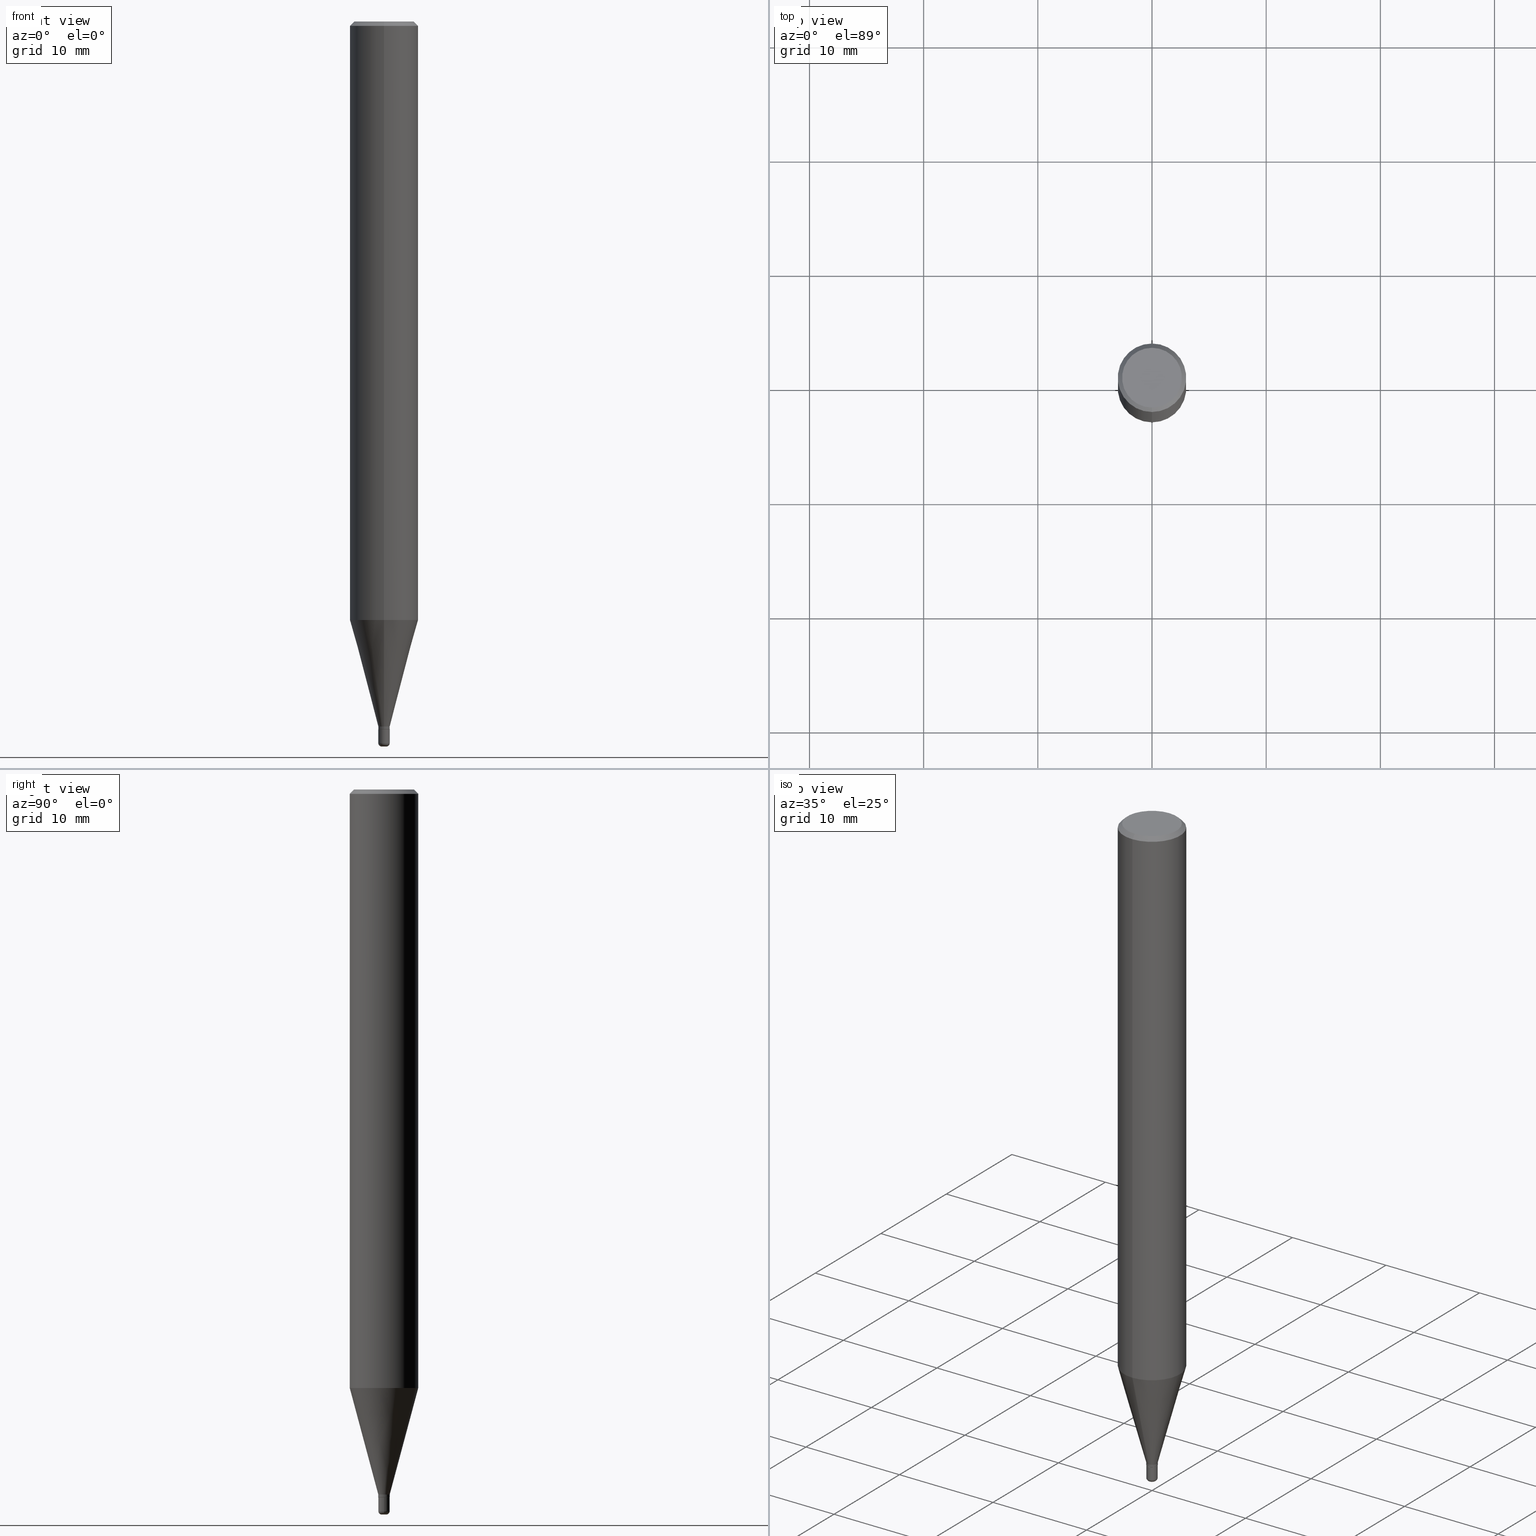
[diagram: canonical four-view strip — front | top / right | iso, engineering-drawing reading convention]
A machine part, canonical four-view strip (front | top / right | iso — engineering-drawing reading convention). The complete STEP part file that produces these views, byte-faithful:
ISO-10303-21;
HEADER;
FILE_DESCRIPTION (( 'STEP AP203' ),
    '1' );
FILE_NAME ('05323.STEP',
    '2024-02-29T19:36:20',
    ( '' ),
    ( '' ),
    'SwSTEP 2.0',
    'SolidWorks 2023',
    '' );
FILE_SCHEMA (( 'CONFIG_CONTROL_DESIGN' ));
ENDSEC;

DATA;
#1 = DIRECTION ( 'NONE',  ( 1.000000000000000000, -6.982962677686265922E-15, 4.876176775795935793E-29 ) ) ;
#2 = DIRECTION ( 'NONE',  ( -2.445641850549916020E-29, 3.491233529463707792E-15, 1.000000000000000000 ) ) ;
#3 = VERTEX_POINT ( 'NONE', #99 ) ;
#4 = CIRCLE ( 'NONE', #151, 0.01969999999999998141 ) ;
#5 = LINE ( 'NONE', #88, #325 ) ;
#6 = DIRECTION ( 'NONE',  ( 1.000000000000000000, -6.982962677686306154E-15, 0.000000000000000000 ) ) ;
#7 = DIRECTION ( 'NONE',  ( -2.445641850549916020E-29, 3.491233529463707792E-15, 1.000000000000000000 ) ) ;
#8 = CIRCLE ( 'NONE', #510, 0.01919999999999997750 ) ;
#9 = CARTESIAN_POINT ( 'NONE',  ( 0.000000000000000000, 0.000000000000000000, 0.000000000000000000 ) ) ;
#10 = DIRECTION ( 'NONE',  ( -2.445468806185136597E-29, 3.491481338843145583E-15, 1.000000000000000000 ) ) ;
#11 = CARTESIAN_POINT ( 'NONE',  ( -1.375643647504193623E-16, -0.01969999999999998835, 6.877730053043500146E-17 ) ) ;
#12 = DIRECTION ( 'NONE',  ( 6.982962677686265922E-15, 1.000000000000000000, -3.487819265831411744E-15 ) ) ;
#13 = CC_DESIGN_PERSON_AND_ORGANIZATION_ASSIGNMENT ( #244, #74, ( #111 ) ) ;
#14 = PLANE ( 'NONE',  #425 ) ;
#15 = CARTESIAN_POINT ( 'NONE',  ( 6.248406319806904300E-49, -8.919803872557076158E-35, -2.554914702004267745E-20 ) ) ;
#16 = CIRCLE ( 'NONE', #258, 0.01969999999999999182 ) ;
#17 = ORIENTED_EDGE ( 'NONE', *, *, #312, .T. ) ;
#18 = ORIENTED_EDGE ( 'NONE', *, *, #312, .F. ) ;
#19 = ADVANCED_FACE ( 'NONE', ( #429 ), #66, .F. ) ;
#20 = DIRECTION ( 'NONE',  ( 1.000000000000000000, -6.982962677686306154E-15, 4.883557194083126914E-29 ) ) ;
#21 = ORIENTED_EDGE ( 'NONE', *, *, #414, .F. ) ;
#22 =( NAMED_UNIT ( * ) PLANE_ANGLE_UNIT ( ) SI_UNIT ( $, .RADIAN. ) );
#23 = ORIENTED_EDGE ( 'NONE', *, *, #464, .T. ) ;
#24 = AXIS2_PLACEMENT_3D ( 'NONE', #148, #296, #260 ) ;
#25 = VERTEX_POINT ( 'NONE', #104 ) ;
#26 = ORIENTED_EDGE ( 'NONE', *, *, #191, .T. ) ;
#27 = ADVANCED_BREP_SHAPE_REPRESENTATION ( '05323', ( #131, #495, #122 ), #320 ) ;
#28 = ADVANCED_FACE ( 'NONE', ( #172 ), #136, .F. ) ;
#29 = PERSON_AND_ORGANIZATION ( #347, #300 ) ;
#30 = AXIS2_PLACEMENT_3D ( 'NONE', #285, #438, #47 ) ;
#31 = PERSON_AND_ORGANIZATION ( #347, #300 ) ;
#32 = DATE_AND_TIME ( #361, #377 ) ;
#33 = APPROVAL ( #238, 'UNSPECIFIED' ) ;
#34 = EDGE_CURVE ( 'NONE', #515, #209, #385, .T. ) ;
#35 = ORIENTED_EDGE ( 'NONE', *, *, #279, .F. ) ;
#36 = EDGE_LOOP ( 'NONE', ( #199, #113 ) ) ;
#37 = DIRECTION ( 'NONE',  ( -2.445641850549916020E-29, 3.491233529463707792E-15, 1.000000000000000000 ) ) ;
#38 = DIRECTION ( 'NONE',  ( -6.982962677686265922E-15, -1.000000000000000000, 3.491233529463707792E-15 ) ) ;
#39 = CARTESIAN_POINT ( 'NONE',  ( 1.399769189447991143E-16, 0.01969999999999150903, -2.430899999999999839 ) ) ;
#40 = VERTEX_POINT ( 'NONE', #184 ) ;
#41 = TOROIDAL_SURFACE ( 'NONE', #197, 0.007899999999999997302, 0.01180000000000033973 ) ;
#42 = DIRECTION ( 'NONE',  ( -2.445641850549916020E-29, 3.491233529463707792E-15, 1.000000000000000000 ) ) ;
#43 = ORIENTED_EDGE ( 'NONE', *, *, #341, .F. ) ;
#44 = CARTESIAN_POINT ( 'NONE',  ( 5.969567193007289904E-29, -8.521751922067965462E-15, -2.440900000000000070 ) ) ;
#45 = EDGE_CURVE ( 'NONE', #302, #25, #50, .T. ) ;
#46 = DIRECTION ( 'NONE',  ( 5.024295867788576727E-15, 0.7071067811866224018, 0.7071067811864726327 ) ) ;
#47 = DIRECTION ( 'NONE',  ( 1.000000000000000000, -6.982962677686369262E-15, 0.000000000000000000 ) ) ;
#48 = CARTESIAN_POINT ( 'NONE',  ( 1.364242052659987581E-16, 0.01919999999999145654, -2.440900000000000070 ) ) ;
#49 = CIRCLE ( 'NONE', #274, 0.007900000000000000772 ) ;
#50 = LINE ( 'NONE', #11, #130 ) ;
#51 = CARTESIAN_POINT ( 'NONE',  ( -8.246878922347479668E-16, -0.1180999999999999966, 4.123146798296638619E-16 ) ) ;
#52 = DIRECTION ( 'NONE',  ( -2.445641850549916020E-29, 3.491233529463707792E-15, 1.000000000000000000 ) ) ;
#53 = CARTESIAN_POINT ( 'NONE',  ( 5.969144809017300159E-29, -8.522356799982234543E-15, -2.440900000000000070 ) ) ;
#54 = CC_DESIGN_PERSON_AND_ORGANIZATION_ASSIGNMENT ( #322, #475, ( #208 ) ) ;
#55 = CARTESIAN_POINT ( 'NONE',  ( 8.391509709326781971E-16, 0.1180999999999999966, -4.123146798296638619E-16 ) ) ;
#56 = AXIS2_PLACEMENT_3D ( 'NONE', #95, #272, #276 ) ;
#57 = AXIS2_PLACEMENT_3D ( 'NONE', #211, #375, #183 ) ;
#58 = ORIENTED_EDGE ( 'NONE', *, *, #128, .T. ) ;
#59 = CARTESIAN_POINT ( 'NONE',  ( 8.246878922347483612E-16, 0.1180999999999999411, -0.01500000000000036894 ) ) ;
#60 = APPLICATION_CONTEXT ( 'configuration controlled 3d designs of mechanical parts and assemblies' ) ;
#61 = ORIENTED_EDGE ( 'NONE', *, *, #73, .F. ) ;
#62 = FACE_OUTER_BOUND ( 'NONE', #125, .T. ) ;
#63 = EDGE_LOOP ( 'NONE', ( #391, #26, #403, #281 ) ) ;
#64 = ORIENTED_EDGE ( 'NONE', *, *, #443, .T. ) ;
#65 = ORIENTED_EDGE ( 'NONE', *, *, #229, .F. ) ;
#66 = PLANE ( 'NONE',  #331 ) ;
#67 = EDGE_CURVE ( 'NONE', #230, #307, #352, .T. ) ;
#68 = VERTEX_POINT ( 'NONE', #261 ) ;
#69 = COORDINATED_UNIVERSAL_TIME_OFFSET ( 5, 0, .BEHIND. ) ;
#70 = AXIS2_PLACEMENT_3D ( 'NONE', #224, #338, #383 ) ;
#71 = ORIENTED_EDGE ( 'NONE', *, *, #372, .T. ) ;
#72 = AXIS2_PLACEMENT_3D ( 'NONE', #168, #290, #1 ) ;
#73 = EDGE_CURVE ( 'NONE', #350, #324, #398, .T. ) ;
#74 = PERSON_AND_ORGANIZATION_ROLE ( 'creator' ) ;
#75 = ORIENTED_EDGE ( 'NONE', *, *, #414, .T. ) ;
#76 = EDGE_LOOP ( 'NONE', ( #402, #75, #17, #387 ) ) ;
#77 = CARTESIAN_POINT ( 'NONE',  ( 3.668462775824863590E-31, -5.236850294195546971E-17, -0.01499999999999995781 ) ) ;
#78 = FACE_OUTER_BOUND ( 'NONE', #205, .T. ) ;
#79 = DIRECTION ( 'NONE',  ( -6.982962677686265133E-15, -1.000000000000000000, 0.000000000000000000 ) ) ;
#80 = FACE_OUTER_BOUND ( 'NONE', #313, .T. ) ;
#81 = CLOSED_SHELL ( 'NONE', ( #469, #504, #91, #284, #85, #268, #381, #452, #114, #19, #326, #139 ) ) ;
#82 = CIRCLE ( 'NONE', #466, 0.1180999999999999966 ) ;
#83 = FACE_OUTER_BOUND ( 'NONE', #76, .T. ) ;
#84 = LOCAL_TIME ( 14, 36, 20.00000000000000000, #430 ) ;
#85 = ADVANCED_FACE ( 'NONE', ( #62 ), #446, .T. ) ;
#86 = DIRECTION ( 'NONE',  ( -6.982962677686265922E-15, -1.000000000000000000, 0.000000000000000000 ) ) ;
#87 = ORIENTED_EDGE ( 'NONE', *, *, #341, .T. ) ;
#88 = CARTESIAN_POINT ( 'NONE',  ( 1.399769189447396292E-16, 0.01969999999999998835, -6.877730053043500146E-17 ) ) ;
#89 = DIRECTION ( 'NONE',  ( 1.000000000000000000, -6.982962677686306154E-15, 4.883557194083126914E-29 ) ) ;
#90 = CARTESIAN_POINT ( 'NONE',  ( 5.046988425594275791E-29, -7.204740632929544117E-15, -2.063666200535222650 ) ) ;
#91 = ADVANCED_FACE ( 'NONE', ( #227 ), #297, .T. ) ;
#92 = LINE ( 'NONE', #59, #100 ) ;
#93 = AXIS2_PLACEMENT_3D ( 'NONE', #77, #37, #121 ) ;
#94 = ORIENTED_EDGE ( 'NONE', *, *, #514, .F. ) ;
#95 = CARTESIAN_POINT ( 'NONE',  ( 6.199188644380781470E-29, -8.606238667193129794E-15, -2.500000000000000000 ) ) ;
#96 = DIRECTION ( 'NONE',  ( 4.937700262164553564E-15, 0.7071067811865459074, -0.7071067811865491270 ) ) ;
#97 = CIRCLE ( 'NONE', #70, 0.1031000000000000111 ) ;
#98 = LINE ( 'NONE', #463, #333 ) ;
#99 = CARTESIAN_POINT ( 'NONE',  ( -0.007900000000000000772, -8.610048709673797919E-15, -2.500000000000000444 ) ) ;
#100 = VECTOR ( 'NONE', #96, 39.37007874015748143 ) ;
#101 = ORIENTED_EDGE ( 'NONE', *, *, #170, .F. ) ;
#102 = EDGE_CURVE ( 'NONE', #117, #40, #97, .T. ) ;
#103 =( LENGTH_UNIT ( ) NAMED_UNIT ( * ) SI_UNIT ( $, .METRE. ) );
#104 = CARTESIAN_POINT ( 'NONE',  ( -1.375643647503599512E-16, -0.01970000000000847809, -2.430899999999999839 ) ) ;
#105 = ORIENTED_EDGE ( 'NONE', *, *, #372, .F. ) ;
#106 = EDGE_CURVE ( 'NONE', #515, #143, #411, .T. ) ;
#107 = COORDINATED_UNIVERSAL_TIME_OFFSET ( 5, 0, .BEHIND. ) ;
#108 = APPROVAL ( #354, 'UNSPECIFIED' ) ;
#109 = ORIENTED_EDGE ( 'NONE', *, *, #191, .F. ) ;
#110 = CIRCLE ( 'NONE', #30, 0.007900000000000000772 ) ;
#111 = PRODUCT_DEFINITION_FORMATION_WITH_SPECIFIED_SOURCE ( 'ANY', '', #208, .NOT_KNOWN. ) ;
#112 = COORDINATED_UNIVERSAL_TIME_OFFSET ( 5, 0, .BEHIND. ) ;
#113 = ORIENTED_EDGE ( 'NONE', *, *, #235, .F. ) ;
#114 = ADVANCED_FACE ( 'NONE', ( #182 ), #14, .F. ) ;
#115 = VERTEX_POINT ( 'NONE', #378 ) ;
#116 = PERSON_AND_ORGANIZATION_ROLE ( 'creator' ) ;
#117 = VERTEX_POINT ( 'NONE', #462 ) ;
#118 = DATE_TIME_ROLE ( 'creation_date' ) ;
#119 = ORIENTED_EDGE ( 'NONE', *, *, #247, .F. ) ;
#120 = AXIS2_PLACEMENT_3D ( 'NONE', #386, #390, #384 ) ;
#121 = DIRECTION ( 'NONE',  ( -6.982962677686265922E-15, -1.000000000000000000, 3.487819265831411744E-15 ) ) ;
#122 = AXIS2_PLACEMENT_3D ( 'NONE', #465, #393, #203 ) ;
#123 = CARTESIAN_POINT ( 'NONE',  ( 1.382005621053990101E-16, 0.01919999999999145654, -2.440900000000000070 ) ) ;
#124 = EDGE_LOOP ( 'NONE', ( #249, #395 ) ) ;
#125 = EDGE_LOOP ( 'NONE', ( #196, #360, #440, #295 ) ) ;
#126 = LINE ( 'NONE', #39, #418 ) ;
#127 = EDGE_LOOP ( 'NONE', ( #305, #21 ) ) ;
#128 = EDGE_CURVE ( 'NONE', #480, #307, #433, .T. ) ;
#129 = LINE ( 'NONE', #252, #232 ) ;
#130 = VECTOR ( 'NONE', #189, 39.37007874015748143 ) ;
#131 = MANIFOLD_SOLID_BREP ( 'Body-Move/Copy2[1]', #316 ) ;
#132 = ORIENTED_EDGE ( 'NONE', *, *, #472, .T. ) ;
#133 = DIRECTION ( 'NONE',  ( -2.445641850549916020E-29, 3.491233529463707792E-15, 1.000000000000000000 ) ) ;
#134 = AXIS2_PLACEMENT_3D ( 'NONE', #304, #422, #12 ) ;
#135 = DIRECTION ( 'NONE',  ( -2.445641850549916020E-29, 3.491233529463707792E-15, 1.000000000000000000 ) ) ;
#136 = PLANE ( 'NONE',  #237 ) ;
#137 = DIRECTION ( 'NONE',  ( -2.445641850549916020E-29, 3.491233529463707792E-15, 1.000000000000000000 ) ) ;
#138 = DIRECTION ( 'NONE',  ( -2.445641850549916020E-29, 3.491233529463707792E-15, 1.000000000000000000 ) ) ;
#139 = ADVANCED_FACE ( 'NONE', ( #336 ), #263, .T. ) ;
#140 = CARTESIAN_POINT ( 'NONE',  ( -8.246878922347475723E-16, -0.1181000000000000522, -0.01499999999999954495 ) ) ;
#141 = CARTESIAN_POINT ( 'NONE',  ( -0.007899999999999997302, -8.631370991184467837E-15, -2.488199999999999967 ) ) ;
#142 = DIRECTION ( 'NONE',  ( 1.000000000000000000, -6.982962677686344808E-15, 0.000000000000000000 ) ) ;
#143 = VERTEX_POINT ( 'NONE', #140 ) ;
#144 = PLANE ( 'NONE',  #56 ) ;
#145 =( NAMED_UNIT ( * ) SI_UNIT ( $, .STERADIAN. ) SOLID_ANGLE_UNIT ( ) );
#146 = CIRCLE ( 'NONE', #427, 0.01919999999999997750 ) ;
#147 = ORIENTED_EDGE ( 'NONE', *, *, #45, .T. ) ;
#148 = CARTESIAN_POINT ( 'NONE',  ( 5.969567193007289904E-29, -8.521751922067965462E-15, -2.440900000000000070 ) ) ;
#149 = ORIENTED_EDGE ( 'NONE', *, *, #34, .T. ) ;
#150 = CARTESIAN_POINT ( 'NONE',  ( -8.246878922346975783E-16, -0.1181000000000072270, -2.063666200535221762 ) ) ;
#151 = AXIS2_PLACEMENT_3D ( 'NONE', #485, #404, #79 ) ;
#152 = DIRECTION ( 'NONE',  ( -2.445468806185136877E-29, 3.491481338843145188E-15, 1.000000000000000000 ) ) ;
#153 = DIRECTION ( 'NONE',  ( -6.982962677686265922E-15, -1.000000000000000000, 3.491233529463707398E-15 ) ) ;
#154 = CONICAL_SURFACE ( 'NONE', #134, 0.1180999999999999966, 0.7853981633974495002 ) ;
#155 = EDGE_LOOP ( 'NONE', ( #43, #474, #231, #246 ) ) ;
#156 = ADVANCED_FACE ( 'NONE', ( #498 ), #144, .F. ) ;
#157 = COORDINATED_UNIVERSAL_TIME_OFFSET ( 5, 0, .BEHIND. ) ;
#158 = VECTOR ( 'NONE', #177, 39.37007874015748143 ) ;
#159 = SHAPE_DEFINITION_REPRESENTATION ( #162, #27 ) ;
#160 = AXIS2_PLACEMENT_3D ( 'NONE', #176, #335, #374 ) ;
#161 = CC_DESIGN_APPROVAL ( #108, ( #111 ) ) ;
#162 = PRODUCT_DEFINITION_SHAPE ( 'NONE', 'NONE',  #482 ) ;
#163 = SECURITY_CLASSIFICATION_LEVEL ( 'unclassified' ) ;
#164 = PERSON_AND_ORGANIZATION ( #347, #300 ) ;
#165 = AXIS2_PLACEMENT_3D ( 'NONE', #53, #226, #478 ) ;
#166 = AXIS2_PLACEMENT_3D ( 'NONE', #349, #266, #506 ) ;
#167 = CC_DESIGN_APPROVAL ( #33, ( #334 ) ) ;
#168 = CARTESIAN_POINT ( 'NONE',  ( 0.000000000000000000, 0.000000000000000000, 0.000000000000000000 ) ) ;
#169 = ORIENTED_EDGE ( 'NONE', *, *, #198, .T. ) ;
#170 = EDGE_CURVE ( 'NONE', #115, #209, #126, .T. ) ;
#171 = CYLINDRICAL_SURFACE ( 'NONE', #491, 0.1180999999999999966 ) ;
#172 = FACE_OUTER_BOUND ( 'NONE', #124, .T. ) ;
#173 = DIRECTION ( 'NONE',  ( 2.445641850549916020E-29, -3.491233529463707792E-15, -1.000000000000000000 ) ) ;
#174 = CARTESIAN_POINT ( 'NONE',  ( -1.340728834115164757E-16, -0.01920000000000850193, -2.440900000000000070 ) ) ;
#175 = VECTOR ( 'NONE', #406, 39.37007874015748143 ) ;
#176 = CARTESIAN_POINT ( 'NONE',  ( 5.945110774501791456E-29, -8.486839586773326720E-15, -2.430899999999999839 ) ) ;
#177 = DIRECTION ( 'NONE',  ( -2.445641850549916300E-29, 3.491233529463707398E-15, 1.000000000000000000 ) ) ;
#178 = LOCAL_TIME ( 14, 36, 20.00000000000000000, #69 ) ;
#179 = CC_DESIGN_DATE_AND_TIME_ASSIGNMENT ( #399, #401, ( #334 ) ) ;
#180 = CARTESIAN_POINT ( 'NONE',  ( 6.084815483549856310E-29, -8.687503867309514303E-15, -2.488199999999999967 ) ) ;
#181 = EDGE_CURVE ( 'NONE', #190, #302, #202, .T. ) ;
#182 = FACE_OUTER_BOUND ( 'NONE', #200, .T. ) ;
#183 = DIRECTION ( 'NONE',  ( -6.982962677686266711E-15, -1.000000000000000000, 0.000000000000000000 ) ) ;
#184 = CARTESIAN_POINT ( 'NONE',  ( 7.723156721521011834E-16, 0.1031000000000000111, -3.599717260347282847E-16 ) ) ;
#185 = DIRECTION ( 'NONE',  ( -2.445468806185136597E-29, 3.491481338843145583E-15, 1.000000000000000000 ) ) ;
#186 = ORIENTED_EDGE ( 'NONE', *, *, #106, .F. ) ;
#187 = CARTESIAN_POINT ( 'NONE',  ( 7.199434520694541042E-16, 0.1031000000000000111, -3.599589514612182737E-16 ) ) ;
#188 = CARTESIAN_POINT ( 'NONE',  ( 6.084815483549856310E-29, -8.687503867309514303E-15, -2.488199999999999967 ) ) ;
#189 = DIRECTION ( 'NONE',  ( -2.445641850549916300E-29, 3.491233529463707398E-15, 1.000000000000000000 ) ) ;
#190 = VERTEX_POINT ( 'NONE', #329 ) ;
#191 = EDGE_CURVE ( 'NONE', #117, #143, #215, .T. ) ;
#192 = EDGE_LOOP ( 'NONE', ( #109, #315, #23, #451 ) ) ;
#193 = ORIENTED_EDGE ( 'NONE', *, *, #198, .F. ) ;
#194 = DIRECTION ( 'NONE',  ( -2.445468806185136597E-29, 3.491481338843145583E-15, 1.000000000000000000 ) ) ;
#195 = ORIENTED_EDGE ( 'NONE', *, *, #102, .T. ) ;
#196 = ORIENTED_EDGE ( 'NONE', *, *, #256, .T. ) ;
#197 = AXIS2_PLACEMENT_3D ( 'NONE', #188, #346, #20 ) ;
#198 = EDGE_CURVE ( 'NONE', #302, #190, #4, .T. ) ;
#199 = ORIENTED_EDGE ( 'NONE', *, *, #476, .F. ) ;
#200 = EDGE_LOOP ( 'NONE', ( #132, #195 ) ) ;
#201 = APPROVAL_DATE_TIME ( #314, #394 ) ;
#202 = CIRCLE ( 'NONE', #264, 0.01969999999999998141 ) ;
#203 = DIRECTION ( 'NONE',  ( 1.000000000000000000, 0.000000000000000000, 0.000000000000000000 ) ) ;
#204 = VECTOR ( 'NONE', #220, 39.37007874015748143 ) ;
#205 = EDGE_LOOP ( 'NONE', ( #426, #319, #207, #417 ) ) ;
#206 = APPROVAL_DATE_TIME ( #32, #33 ) ;
#207 = ORIENTED_EDGE ( 'NONE', *, *, #106, .T. ) ;
#208 = PRODUCT ( '05323', '05323', '', ( #318 ) ) ;
#209 = VERTEX_POINT ( 'NONE', #369 ) ;
#210 = ORIENTED_EDGE ( 'NONE', *, *, #247, .T. ) ;
#211 = CARTESIAN_POINT ( 'NONE',  ( 5.969567193007289904E-29, -8.521751922067965462E-15, -2.440900000000000070 ) ) ;
#212 = AXIS2_PLACEMENT_3D ( 'NONE', #345, #342, #6 ) ;
#213 = CC_DESIGN_PERSON_AND_ORGANIZATION_ASSIGNMENT ( #473, #116, ( #482 ) ) ;
#214 = AXIS2_PLACEMENT_3D ( 'NONE', #407, #486, #447 ) ;
#215 = LINE ( 'NONE', #441, #175 ) ;
#216 = CC_DESIGN_SECURITY_CLASSIFICATION ( #334, ( #111 ) ) ;
#217 = CARTESIAN_POINT ( 'NONE',  ( -0.01969999999999999876, -8.464953414701133537E-15, -2.440900000000000070 ) ) ;
#218 = ORIENTED_EDGE ( 'NONE', *, *, #181, .T. ) ;
#219 = FACE_OUTER_BOUND ( 'NONE', #396, .T. ) ;
#220 = DIRECTION ( 'NONE',  ( -4.937700262165053702E-15, -0.7071067811866175168, 0.7071067811864775177 ) ) ;
#221 = VECTOR ( 'NONE', #370, 39.37007874015748143 ) ;
#222 = DIRECTION ( 'NONE',  ( -2.445641850549916300E-29, 3.491233529463707398E-15, 1.000000000000000000 ) ) ;
#223 = CARTESIAN_POINT ( 'NONE',  ( 3.668462775824863590E-31, -5.236850294195546971E-17, -0.01499999999999995781 ) ) ;
#224 = CARTESIAN_POINT ( 'NONE',  ( 6.248406319806904300E-49, -8.919803872557076158E-35, -2.554914702004267745E-20 ) ) ;
#225 = CARTESIAN_POINT ( 'NONE',  ( 6.084815483549856310E-29, -8.687503867309514303E-15, -2.488199999999999967 ) ) ;
#226 = DIRECTION ( 'NONE',  ( -2.445468806185136597E-29, 3.491481338843145583E-15, 1.000000000000000000 ) ) ;
#227 = FACE_OUTER_BOUND ( 'NONE', #63, .T. ) ;
#228 = CARTESIAN_POINT ( 'NONE',  ( -0.01970000000000033877, -8.464953414701131959E-15, -2.488199999999999967 ) ) ;
#229 = EDGE_CURVE ( 'NONE', #143, #513, #309, .T. ) ;
#230 = VERTEX_POINT ( 'NONE', #516 ) ;
#231 = ORIENTED_EDGE ( 'NONE', *, *, #67, .T. ) ;
#232 = VECTOR ( 'NONE', #373, 39.37007874015748854 ) ;
#233 = DIRECTION ( 'NONE',  ( 1.000000000000000000, -6.982962677686369262E-15, 0.000000000000000000 ) ) ;
#234 = PRODUCT_RELATED_PRODUCT_CATEGORY ( 'detail', '', ( #208 ) ) ;
#235 = EDGE_CURVE ( 'NONE', #3, #230, #110, .T. ) ;
#236 = ORIENTED_EDGE ( 'NONE', *, *, #362, .T. ) ;
#237 = AXIS2_PLACEMENT_3D ( 'NONE', #294, #456, #460 ) ;
#238 = APPROVAL_STATUS ( 'not_yet_approved' ) ;
#239 = APPROVAL_STATUS ( 'not_yet_approved' ) ;
#240 = CALENDAR_DATE ( 2024, 29, 2 ) ;
#241 = VECTOR ( 'NONE', #46, 39.37007874015748143 ) ;
#242 = EDGE_LOOP ( 'NONE', ( #119, #218, #147, #35 ) ) ;
#243 = APPROVAL_PERSON_ORGANIZATION ( #31, #33, #508 ) ;
#244 = PERSON_AND_ORGANIZATION ( #347, #300 ) ;
#245 = EDGE_LOOP ( 'NONE', ( #273, #87, #94, #291 ) ) ;
#246 = ORIENTED_EDGE ( 'NONE', *, *, #128, .F. ) ;
#247 = EDGE_CURVE ( 'NONE', #190, #115, #5, .T. ) ;
#248 = CYLINDRICAL_SURFACE ( 'NONE', #448, 0.1180999999999999966 ) ;
#249 = ORIENTED_EDGE ( 'NONE', *, *, #501, .T. ) ;
#250 = DIRECTION ( 'NONE',  ( -6.982962677686265133E-15, -1.000000000000000000, 0.000000000000000000 ) ) ;
#251 = CYLINDRICAL_SURFACE ( 'NONE', #214, 0.01970000000000016877 ) ;
#252 = CARTESIAN_POINT ( 'NONE',  ( -1.375643647503599512E-16, -0.01970000000000847809, -2.430899999999999839 ) ) ;
#253 = DIRECTION ( 'NONE',  ( -2.445641850549916020E-29, 3.491233529463707792E-15, 1.000000000000000000 ) ) ;
#254 = CARTESIAN_POINT ( 'NONE',  ( 5.945110774501791456E-29, -8.486839586773326720E-15, -2.430899999999999839 ) ) ;
#255 = DIRECTION ( 'NONE',  ( -2.445641850549916020E-29, 3.491233529463707792E-15, 1.000000000000000000 ) ) ;
#256 = EDGE_CURVE ( 'NONE', #25, #115, #400, .T. ) ;
#257 = DIRECTION ( 'NONE',  ( -6.982962677686265922E-15, -1.000000000000000000, 4.626330217890369336E-15 ) ) ;
#258 = AXIS2_PLACEMENT_3D ( 'NONE', #254, #2, #86 ) ;
#259 = APPLICATION_PROTOCOL_DEFINITION ( 'international standard', 'config_control_design', 1994, #421 ) ;
#260 = DIRECTION ( 'NONE',  ( -6.982962677686266711E-15, -1.000000000000000000, 0.000000000000000000 ) ) ;
#261 = CARTESIAN_POINT ( 'NONE',  ( -1.340728834115164757E-16, -0.01920000000000850193, -2.440900000000000070 ) ) ;
#262 = EDGE_CURVE ( 'NONE', #209, #515, #82, .T. ) ;
#263 = CYLINDRICAL_SURFACE ( 'NONE', #287, 0.01969999999999998835 ) ;
#264 = AXIS2_PLACEMENT_3D ( 'NONE', #483, #518, #250 ) ;
#265 = ORIENTED_EDGE ( 'NONE', *, *, #434, .F. ) ;
#266 = DIRECTION ( 'NONE',  ( -2.445641850549916020E-29, 3.491233529463707792E-15, 1.000000000000000000 ) ) ;
#267 = AXIS2_PLACEMENT_3D ( 'NONE', #141, #410, #339 ) ;
#268 = ADVANCED_FACE ( 'NONE', ( #389 ), #436, .T. ) ;
#269 =( CONVERSION_BASED_UNIT ( 'INCH', #351 ) LENGTH_UNIT ( ) NAMED_UNIT ( #507 ) );
#270 = PERSON_AND_ORGANIZATION_ROLE ( 'classification_officer' ) ;
#271 = AXIS2_PLACEMENT_3D ( 'NONE', #223, #173, #488 ) ;
#272 = DIRECTION ( 'NONE',  ( -2.438088387897960049E-29, 3.491481338843145188E-15, 1.000000000000000000 ) ) ;
#273 = ORIENTED_EDGE ( 'NONE', *, *, #476, .T. ) ;
#274 = AXIS2_PLACEMENT_3D ( 'NONE', #420, #185, #233 ) ;
#275 = LOCAL_TIME ( 14, 36, 20.00000000000000000, #107 ) ;
#276 = DIRECTION ( 'NONE',  ( 1.000000000000000000, -6.982962677686265922E-15, 4.876176775795935793E-29 ) ) ;
#277 = DATE_AND_TIME ( #397, #275 ) ;
#278 = DIRECTION ( 'NONE',  ( -2.445641850549916020E-29, 3.491233529463707398E-15, 1.000000000000000000 ) ) ;
#279 = EDGE_CURVE ( 'NONE', #115, #25, #16, .T. ) ;
#280 = PERSON_AND_ORGANIZATION_ROLE ( 'design_supplier' ) ;
#281 = ORIENTED_EDGE ( 'NONE', *, *, #464, .F. ) ;
#282 = APPROVAL_ROLE ( '' ) ;
#283 = AXIS2_PLACEMENT_3D ( 'NONE', #15, #52, #459 ) ;
#284 = ADVANCED_FACE ( 'NONE', ( #455 ), #171, .T. ) ;
#285 = CARTESIAN_POINT ( 'NONE',  ( 6.113672015462842613E-29, -8.728703347107866520E-15, -2.500000000000000444 ) ) ;
#286 = DIRECTION ( 'NONE',  ( -2.445641850549916020E-29, 3.491233529463707792E-15, 1.000000000000000000 ) ) ;
#287 = AXIS2_PLACEMENT_3D ( 'NONE', #9, #133, #289 ) ;
#288 = CARTESIAN_POINT ( 'NONE',  ( 5.945110774501791456E-29, -8.486839586773326720E-15, -2.430899999999999839 ) ) ;
#289 = DIRECTION ( 'NONE',  ( -6.982962677686265922E-15, -1.000000000000000000, 3.491233529463707792E-15 ) ) ;
#290 = DIRECTION ( 'NONE',  ( -2.445468806185136597E-29, 3.491481338843145583E-15, 1.000000000000000000 ) ) ;
#291 = ORIENTED_EDGE ( 'NONE', *, *, #67, .F. ) ;
#292 = DIRECTION ( 'NONE',  ( -6.982962677686265922E-15, -1.000000000000000000, 4.626330217890369336E-15 ) ) ;
#293 = CYLINDRICAL_SURFACE ( 'NONE', #72, 0.01970000000000016877 ) ;
#294 = CARTESIAN_POINT ( 'NONE',  ( 1.375643647504790939E-16, 0.01969999999999147433, -2.440900000000000070 ) ) ;
#295 = ORIENTED_EDGE ( 'NONE', *, *, #409, .F. ) ;
#296 = DIRECTION ( 'NONE',  ( -2.445641850549916020E-29, 3.491233529463707792E-15, 1.000000000000000000 ) ) ;
#297 = CONICAL_SURFACE ( 'NONE', #271, 0.1180999999999999966, 0.7853981633974495002 ) ;
#298 = TOROIDAL_SURFACE ( 'NONE', #490, 0.007899999999999997302, 0.01180000000000033973 ) ;
#299 = CC_DESIGN_DATE_AND_TIME_ASSIGNMENT ( #277, #118, ( #482 ) ) ;
#300 = ORGANIZATION ( 'UNSPECIFIED', 'UNSPECIFIED', '' ) ;
#301 = FACE_OUTER_BOUND ( 'NONE', #192, .T. ) ;
#302 = VERTEX_POINT ( 'NONE', #412 ) ;
#303 = DIRECTION ( 'NONE',  ( 2.445641850549916020E-29, -3.491233529463707398E-15, -1.000000000000000000 ) ) ;
#304 = CARTESIAN_POINT ( 'NONE',  ( 3.668462775824863590E-31, -5.236850294195546971E-17, -0.01499999999999995781 ) ) ;
#305 = ORIENTED_EDGE ( 'NONE', *, *, #362, .F. ) ;
#306 = DIRECTION ( 'NONE',  ( 1.000000000000000000, -6.982962677686306154E-15, 0.000000000000000000 ) ) ;
#307 = VERTEX_POINT ( 'NONE', #330 ) ;
#308 = CC_DESIGN_PERSON_AND_ORGANIZATION_ASSIGNMENT ( #431, #270, ( #334 ) ) ;
#309 = CIRCLE ( 'NONE', #93, 0.1180999999999999966 ) ;
#310 = CONICAL_SURFACE ( 'NONE', #57, 0.01919999999999997750, 0.7853981633975507526 ) ;
#311 = LINE ( 'NONE', #55, #500 ) ;
#312 = EDGE_CURVE ( 'NONE', #68, #302, #415, .T. ) ;
#313 = EDGE_LOOP ( 'NONE', ( #105, #58, #503, #61 ) ) ;
#314 = DATE_AND_TIME ( #479, #467 ) ;
#315 = ORIENTED_EDGE ( 'NONE', *, *, #472, .F. ) ;
#316 = CLOSED_SHELL ( 'NONE', ( #511, #419, #28, #424, #317, #156 ) ) ;
#317 = ADVANCED_FACE ( 'NONE', ( #517 ), #298, .T. ) ;
#318 = MECHANICAL_CONTEXT ( 'NONE', #421, 'mechanical' ) ;
#319 = ORIENTED_EDGE ( 'NONE', *, *, #262, .T. ) ;
#320 =( GEOMETRIC_REPRESENTATION_CONTEXT ( 3 ) GLOBAL_UNCERTAINTY_ASSIGNED_CONTEXT ( ( #471 ) ) GLOBAL_UNIT_ASSIGNED_CONTEXT ( ( #269, #22, #145 ) ) REPRESENTATION_CONTEXT ( 'NONE', 'WORKASPACE' ) );
#321 = APPROVAL_PERSON_ORGANIZATION ( #357, #108, #282 ) ;
#322 = PERSON_AND_ORGANIZATION ( #347, #300 ) ;
#323 = EDGE_CURVE ( 'NONE', #413, #190, #405, .T. ) ;
#324 = VERTEX_POINT ( 'NONE', #379 ) ;
#325 = VECTOR ( 'NONE', #222, 39.37007874015748143 ) ;
#326 = ADVANCED_FACE ( 'NONE', ( #83 ), #310, .T. ) ;
#327 = CARTESIAN_POINT ( 'NONE',  ( 3.668462775824863590E-31, -5.236850294195546971E-17, -0.01499999999999995781 ) ) ;
#328 = ORIENTED_EDGE ( 'NONE', *, *, #262, .F. ) ;
#329 = CARTESIAN_POINT ( 'NONE',  ( 1.399769189447987691E-16, 0.01969999999999139106, -2.440400000000000347 ) ) ;
#330 = CARTESIAN_POINT ( 'NONE',  ( 0.01970000000000033877, -8.825068232059938251E-15, -2.488199999999999967 ) ) ;
#331 = AXIS2_PLACEMENT_3D ( 'NONE', #355, #278, #153 ) ;
#332 = DIRECTION ( 'NONE',  ( -6.982962677686265922E-15, -1.000000000000000000, 0.000000000000000000 ) ) ;
#333 = VECTOR ( 'NONE', #152, 39.37007874015748143 ) ;
#334 = SECURITY_CLASSIFICATION ( '', '', #163 ) ;
#335 = DIRECTION ( 'NONE',  ( -2.445641850549916020E-29, 3.491233529463707792E-15, 1.000000000000000000 ) ) ;
#336 = FACE_OUTER_BOUND ( 'NONE', #242, .T. ) ;
#337 = LINE ( 'NONE', #439, #221 ) ;
#338 = DIRECTION ( 'NONE',  ( -2.445641850549916020E-29, 3.491233529463707792E-15, 1.000000000000000000 ) ) ;
#339 = DIRECTION ( 'NONE',  ( -1.000000000000000000, 7.105427357601039724E-15, 0.000000000000000000 ) ) ;
#340 = CARTESIAN_POINT ( 'NONE',  ( 0.007899999999999997302, -8.742669272463236971E-15, -2.488199999999999967 ) ) ;
#341 = EDGE_CURVE ( 'NONE', #3, #480, #367, .T. ) ;
#342 = DIRECTION ( 'NONE',  ( -2.445468806185136597E-29, 3.491481338843145583E-15, 1.000000000000000000 ) ) ;
#343 = CYLINDRICAL_SURFACE ( 'NONE', #166, 0.01969999999999998835 ) ;
#344 = CIRCLE ( 'NONE', #408, 0.01970000000000033877 ) ;
#345 = CARTESIAN_POINT ( 'NONE',  ( 6.084815483549856310E-29, -8.687503867309514303E-15, -2.488199999999999967 ) ) ;
#346 = DIRECTION ( 'NONE',  ( -2.445468806185136597E-29, 3.491481338843145583E-15, 1.000000000000000000 ) ) ;
#347 = PERSON ( 'UNSPECIFIED', 'UNSPECIFIED', 'UNSPECIFIED', ('UNSPECIFIED'), ('UNSPECIFIED'), ('UNSPECIFIED') ) ;
#348 = EDGE_LOOP ( 'NONE', ( #169, #210, #432, #449 ) ) ;
#349 = CARTESIAN_POINT ( 'NONE',  ( 0.000000000000000000, 0.000000000000000000, 0.000000000000000000 ) ) ;
#350 = VERTEX_POINT ( 'NONE', #217 ) ;
#351 = LENGTH_MEASURE_WITH_UNIT ( LENGTH_MEASURE( 0.02539999999999999897 ), #103 );
#352 = CIRCLE ( 'NONE', #358, 0.01180000000000034147 ) ;
#353 = CIRCLE ( 'NONE', #120, 0.01969999999999999876 ) ;
#354 = APPROVAL_STATUS ( 'not_yet_approved' ) ;
#355 = CARTESIAN_POINT ( 'NONE',  ( 5.969567193007289904E-29, -8.521751922067965462E-15, -2.440900000000000070 ) ) ;
#356 = CC_DESIGN_PERSON_AND_ORGANIZATION_ASSIGNMENT ( #29, #280, ( #111 ) ) ;
#357 = PERSON_AND_ORGANIZATION ( #347, #300 ) ;
#358 = AXIS2_PLACEMENT_3D ( 'NONE', #340, #497, #142 ) ;
#359 = APPLICATION_PROTOCOL_DEFINITION ( 'international standard', 'config_control_design', 1994, #60 ) ;
#360 = ORIENTED_EDGE ( 'NONE', *, *, #170, .T. ) ;
#361 = CALENDAR_DATE ( 2024, 29, 2 ) ;
#362 = EDGE_CURVE ( 'NONE', #68, #413, #8, .T. ) ;
#363 = APPROVAL_ROLE ( '' ) ;
#364 = DIRECTION ( 'NONE',  ( 1.839019923739594004E-15, 0.2588190451025240701, 0.9659258262890673130 ) ) ;
#365 = AXIS2_PLACEMENT_3D ( 'NONE', #416, #253, #454 ) ;
#366 = DIRECTION ( 'NONE',  ( -6.982962677686266711E-15, -1.000000000000000000, 0.000000000000000000 ) ) ;
#367 = CIRCLE ( 'NONE', #267, 0.01180000000000034147 ) ;
#368 = APPROVAL_PERSON_ORGANIZATION ( #164, #394, #363 ) ;
#369 = CARTESIAN_POINT ( 'NONE',  ( 8.391509709327284870E-16, 0.1180999999999927941, -2.063666200535223094 ) ) ;
#370 = DIRECTION ( 'NONE',  ( -2.445468806185136877E-29, 3.491481338843145188E-15, 1.000000000000000000 ) ) ;
#371 = ORIENTED_EDGE ( 'NONE', *, *, #279, .T. ) ;
#372 = EDGE_CURVE ( 'NONE', #480, #350, #337, .T. ) ;
#373 = DIRECTION ( 'NONE',  ( -1.807323732225323828E-15, -0.2588190451025172978, 0.9659258262890690894 ) ) ;
#374 = DIRECTION ( 'NONE',  ( -6.982962677686265922E-15, -1.000000000000000000, 0.000000000000000000 ) ) ;
#375 = DIRECTION ( 'NONE',  ( -2.445641850549916020E-29, 3.491233529463707792E-15, 1.000000000000000000 ) ) ;
#376 = AXIS2_PLACEMENT_3D ( 'NONE', #327, #286, #444 ) ;
#377 = LOCAL_TIME ( 14, 36, 20.00000000000000000, #157 ) ;
#378 = CARTESIAN_POINT ( 'NONE',  ( 4.895639449387641704E-16, 0.01969999999999150903, -2.430899999999999839 ) ) ;
#379 = CARTESIAN_POINT ( 'NONE',  ( 0.01969999999999999876, -8.659921164732653758E-15, -2.440900000000000070 ) ) ;
#380 = DIRECTION ( 'NONE',  ( -2.445641850549916020E-29, 3.491233529463707792E-15, 1.000000000000000000 ) ) ;
#381 = ADVANCED_FACE ( 'NONE', ( #78 ), #248, .T. ) ;
#382 = DIRECTION ( 'NONE',  ( -2.445641850549916300E-29, 3.491233529463707398E-15, 1.000000000000000000 ) ) ;
#383 = DIRECTION ( 'NONE',  ( -6.982962677686265922E-15, -1.000000000000000000, 3.491233529463707398E-15 ) ) ;
#384 = DIRECTION ( 'NONE',  ( 1.000000000000000000, -6.982962677686278543E-15, 0.000000000000000000 ) ) ;
#385 = CIRCLE ( 'NONE', #487, 0.1180999999999999966 ) ;
#386 = CARTESIAN_POINT ( 'NONE',  ( 5.969144809017300159E-29, -8.522356799982234543E-15, -2.440900000000000070 ) ) ;
#387 = ORIENTED_EDGE ( 'NONE', *, *, #181, .F. ) ;
#388 = FACE_OUTER_BOUND ( 'NONE', #494, .T. ) ;
#389 = FACE_OUTER_BOUND ( 'NONE', #437, .T. ) ;
#390 = DIRECTION ( 'NONE',  ( -2.445468806185136597E-29, 3.491481338843145583E-15, 1.000000000000000000 ) ) ;
#391 = ORIENTED_EDGE ( 'NONE', *, *, #102, .F. ) ;
#392 = AXIS2_PLACEMENT_3D ( 'NONE', #288, #7, #332 ) ;
#393 = DIRECTION ( 'NONE',  ( 0.000000000000000000, 0.000000000000000000, 1.000000000000000000 ) ) ;
#394 = APPROVAL ( #239, 'UNSPECIFIED' ) ;
#395 = ORIENTED_EDGE ( 'NONE', *, *, #73, .T. ) ;
#396 = EDGE_LOOP ( 'NONE', ( #461, #71, #477, #265 ) ) ;
#397 = CALENDAR_DATE ( 2024, 29, 2 ) ;
#398 = CIRCLE ( 'NONE', #165, 0.01969999999999999876 ) ;
#399 = DATE_AND_TIME ( #240, #178 ) ;
#400 = CIRCLE ( 'NONE', #160, 0.01969999999999999182 ) ;
#401 = DATE_TIME_ROLE ( 'classification_date' ) ;
#402 = ORIENTED_EDGE ( 'NONE', *, *, #323, .F. ) ;
#403 = ORIENTED_EDGE ( 'NONE', *, *, #229, .T. ) ;
#404 = DIRECTION ( 'NONE',  ( -2.445641850549916020E-29, 3.491233529463707792E-15, 1.000000000000000000 ) ) ;
#405 = LINE ( 'NONE', #48, #241 ) ;
#406 = DIRECTION ( 'NONE',  ( -4.851104656540969797E-15, -0.7071067811865507924, -0.7071067811865442421 ) ) ;
#407 = CARTESIAN_POINT ( 'NONE',  ( 0.000000000000000000, 0.000000000000000000, 0.000000000000000000 ) ) ;
#408 = AXIS2_PLACEMENT_3D ( 'NONE', #225, #194, #306 ) ;
#409 = EDGE_CURVE ( 'NONE', #25, #515, #129, .T. ) ;
#410 = DIRECTION ( 'NONE',  ( 7.105427357601001859E-15, 1.000000000000000000, -3.491481338843145583E-15 ) ) ;
#411 = LINE ( 'NONE', #51, #158 ) ;
#412 = CARTESIAN_POINT ( 'NONE',  ( -1.375643647503600991E-16, -0.01970000000000856830, -2.440400000000000347 ) ) ;
#413 = VERTEX_POINT ( 'NONE', #123 ) ;
#414 = EDGE_CURVE ( 'NONE', #413, #68, #146, .T. ) ;
#415 = LINE ( 'NONE', #174, #204 ) ;
#416 = CARTESIAN_POINT ( 'NONE',  ( 5.945110774501791456E-29, -8.486839586773326720E-15, -2.430899999999999839 ) ) ;
#417 = ORIENTED_EDGE ( 'NONE', *, *, #423, .F. ) ;
#418 = VECTOR ( 'NONE', #364, 39.37007874015748854 ) ;
#419 = ADVANCED_FACE ( 'NONE', ( #219 ), #293, .T. ) ;
#420 = CARTESIAN_POINT ( 'NONE',  ( 6.113672015462842613E-29, -8.728703347107866520E-15, -2.500000000000000444 ) ) ;
#421 = APPLICATION_CONTEXT ( 'configuration controlled 3d designs of mechanical parts and assemblies' ) ;
#422 = DIRECTION ( 'NONE',  ( 2.445641850549916020E-29, -3.491233529463707792E-15, -1.000000000000000000 ) ) ;
#423 = EDGE_CURVE ( 'NONE', #513, #143, #457, .T. ) ;
#424 = ADVANCED_FACE ( 'NONE', ( #80 ), #251, .T. ) ;
#425 = AXIS2_PLACEMENT_3D ( 'NONE', #187, #303, #458 ) ;
#426 = ORIENTED_EDGE ( 'NONE', *, *, #443, .F. ) ;
#427 = AXIS2_PLACEMENT_3D ( 'NONE', #44, #135, #366 ) ;
#428 = CC_DESIGN_APPROVAL ( #394, ( #482 ) ) ;
#429 = FACE_OUTER_BOUND ( 'NONE', #127, .T. ) ;
#430 = COORDINATED_UNIVERSAL_TIME_OFFSET ( 5, 0, .BEHIND. ) ;
#431 = PERSON_AND_ORGANIZATION ( #347, #300 ) ;
#432 = ORIENTED_EDGE ( 'NONE', *, *, #256, .F. ) ;
#433 = CIRCLE ( 'NONE', #212, 0.01970000000000033877 ) ;
#434 = EDGE_CURVE ( 'NONE', #307, #324, #98, .T. ) ;
#435 = DATE_AND_TIME ( #470, #84 ) ;
#436 = CONICAL_SURFACE ( 'NONE', #392, 0.01969999999999999182, 0.2617993877991494078 ) ;
#437 = EDGE_LOOP ( 'NONE', ( #101, #371, #445, #328 ) ) ;
#438 = DIRECTION ( 'NONE',  ( -2.445468806185136597E-29, 3.491481338843145583E-15, 1.000000000000000000 ) ) ;
#439 = CARTESIAN_POINT ( 'NONE',  ( -0.01970000000000016877, 1.399769189447409358E-16, -9.690302127802246579E-31 ) ) ;
#440 = ORIENTED_EDGE ( 'NONE', *, *, #34, .F. ) ;
#441 = CARTESIAN_POINT ( 'NONE',  ( -8.102248135368174406E-16, -0.1181000000000000522, -0.01499999999999954495 ) ) ;
#442 = EDGE_LOOP ( 'NONE', ( #149, #64, #65, #186 ) ) ;
#443 = EDGE_CURVE ( 'NONE', #209, #513, #311, .T. ) ;
#444 = DIRECTION ( 'NONE',  ( -6.982962677686265922E-15, -1.000000000000000000, 3.487819265831411744E-15 ) ) ;
#445 = ORIENTED_EDGE ( 'NONE', *, *, #409, .T. ) ;
#446 = CONICAL_SURFACE ( 'NONE', #365, 0.01969999999999999182, 0.2617993877991494078 ) ;
#447 = DIRECTION ( 'NONE',  ( 1.000000000000000000, -6.982962677686265922E-15, 4.876176775795935793E-29 ) ) ;
#448 = AXIS2_PLACEMENT_3D ( 'NONE', #493, #138, #38 ) ;
#449 = ORIENTED_EDGE ( 'NONE', *, *, #45, .F. ) ;
#450 = CARTESIAN_POINT ( 'NONE',  ( 0.000000000000000000, 0.000000000000000000, 0.000000000000000000 ) ) ;
#451 = ORIENTED_EDGE ( 'NONE', *, *, #423, .T. ) ;
#452 = ADVANCED_FACE ( 'NONE', ( #301 ), #154, .T. ) ;
#453 = ORIENTED_EDGE ( 'NONE', *, *, #323, .T. ) ;
#454 = DIRECTION ( 'NONE',  ( -6.982962677686265922E-15, -1.000000000000000000, 0.000000000000000000 ) ) ;
#455 = FACE_OUTER_BOUND ( 'NONE', #442, .T. ) ;
#456 = DIRECTION ( 'NONE',  ( 2.438088387897960049E-29, -3.491481338843145188E-15, -1.000000000000000000 ) ) ;
#457 = CIRCLE ( 'NONE', #376, 0.1180999999999999966 ) ;
#458 = DIRECTION ( 'NONE',  ( 6.982962677686265922E-15, 1.000000000000000000, -3.491233529463707398E-15 ) ) ;
#459 = DIRECTION ( 'NONE',  ( -6.982962677686265922E-15, -1.000000000000000000, 3.491233529463707398E-15 ) ) ;
#460 = DIRECTION ( 'NONE',  ( -1.000000000000000000, 6.982962677686265922E-15, -4.876176775795935793E-29 ) ) ;
#461 = ORIENTED_EDGE ( 'NONE', *, *, #514, .T. ) ;
#462 = CARTESIAN_POINT ( 'NONE',  ( -7.587710785535310407E-16, -0.1031000000000000111, 3.599206277406882409E-16 ) ) ;
#463 = CARTESIAN_POINT ( 'NONE',  ( 0.01970000000000016877, -1.375643647504206195E-16, 9.606068248318075544E-31 ) ) ;
#464 = EDGE_CURVE ( 'NONE', #40, #513, #92, .T. ) ;
#465 = CARTESIAN_POINT ( 'NONE',  ( 0.000000000000000000, 0.000000000000000000, 0.000000000000000000 ) ) ;
#466 = AXIS2_PLACEMENT_3D ( 'NONE', #492, #137, #292 ) ;
#467 = LOCAL_TIME ( 14, 36, 20.00000000000000000, #112 ) ;
#468 = FACE_OUTER_BOUND ( 'NONE', #348, .T. ) ;
#469 = ADVANCED_FACE ( 'NONE', ( #468 ), #343, .T. ) ;
#470 = CALENDAR_DATE ( 2024, 29, 2 ) ;
#471 = UNCERTAINTY_MEASURE_WITH_UNIT (LENGTH_MEASURE( 1.000000000000000082E-05 ), #269, 'distance_accuracy_value', 'NONE');
#472 = EDGE_CURVE ( 'NONE', #40, #117, #505, .T. ) ;
#473 = PERSON_AND_ORGANIZATION ( #347, #300 ) ;
#474 = ORIENTED_EDGE ( 'NONE', *, *, #235, .T. ) ;
#475 = PERSON_AND_ORGANIZATION_ROLE ( 'design_owner' ) ;
#476 = EDGE_CURVE ( 'NONE', #230, #3, #49, .T. ) ;
#477 = ORIENTED_EDGE ( 'NONE', *, *, #501, .F. ) ;
#478 = DIRECTION ( 'NONE',  ( 1.000000000000000000, -6.982962677686278543E-15, 0.000000000000000000 ) ) ;
#479 = CALENDAR_DATE ( 2024, 29, 2 ) ;
#480 = VERTEX_POINT ( 'NONE', #228 ) ;
#481 = CONICAL_SURFACE ( 'NONE', #24, 0.01919999999999997750, 0.7853981633975507526 ) ;
#482 = PRODUCT_DEFINITION ( 'UNKNOWN', '', #111, #509 ) ;
#483 = CARTESIAN_POINT ( 'NONE',  ( 5.968344372082015542E-29, -8.520006305303232657E-15, -2.440400000000000347 ) ) ;
#484 = DIRECTION ( 'NONE',  ( -6.982962677686265922E-15, -1.000000000000000000, 3.491233529463707792E-15 ) ) ;
#485 = CARTESIAN_POINT ( 'NONE',  ( 5.968344372082015542E-29, -8.520006305303232657E-15, -2.440400000000000347 ) ) ;
#486 = DIRECTION ( 'NONE',  ( -2.445468806185136597E-29, 3.491481338843145583E-15, 1.000000000000000000 ) ) ;
#487 = AXIS2_PLACEMENT_3D ( 'NONE', #90, #380, #257 ) ;
#488 = DIRECTION ( 'NONE',  ( 6.982962677686265922E-15, 1.000000000000000000, -3.487819265831411744E-15 ) ) ;
#489 = CARTESIAN_POINT ( 'NONE',  ( 5.969567193007289904E-29, -8.521751922067965462E-15, -2.440900000000000070 ) ) ;
#490 = AXIS2_PLACEMENT_3D ( 'NONE', #180, #10, #89 ) ;
#491 = AXIS2_PLACEMENT_3D ( 'NONE', #450, #255, #484 ) ;
#492 = CARTESIAN_POINT ( 'NONE',  ( 5.046988425594275791E-29, -7.204740632929544117E-15, -2.063666200535222650 ) ) ;
#493 = CARTESIAN_POINT ( 'NONE',  ( 0.000000000000000000, 0.000000000000000000, 0.000000000000000000 ) ) ;
#494 = EDGE_LOOP ( 'NONE', ( #236, #453, #193, #18 ) ) ;
#495 = MANIFOLD_SOLID_BREP ( 'Body-Move/Copy2[2]', #81 ) ;
#496 = DIRECTION ( 'NONE',  ( -6.982962677686266711E-15, -1.000000000000000000, 0.000000000000000000 ) ) ;
#497 = DIRECTION ( 'NONE',  ( -6.982962677686266711E-15, -1.000000000000000000, 3.491481338843145583E-15 ) ) ;
#498 = FACE_OUTER_BOUND ( 'NONE', #36, .T. ) ;
#499 = CARTESIAN_POINT ( 'NONE',  ( 8.391509709327288814E-16, 0.1180999999999999411, -0.01500000000000036894 ) ) ;
#500 = VECTOR ( 'NONE', #382, 39.37007874015748143 ) ;
#501 = EDGE_CURVE ( 'NONE', #324, #350, #353, .T. ) ;
#502 = FACE_OUTER_BOUND ( 'NONE', #245, .T. ) ;
#503 = ORIENTED_EDGE ( 'NONE', *, *, #434, .T. ) ;
#504 = ADVANCED_FACE ( 'NONE', ( #388 ), #481, .T. ) ;
#505 = CIRCLE ( 'NONE', #283, 0.1031000000000000111 ) ;
#506 = DIRECTION ( 'NONE',  ( -6.982962677686265922E-15, -1.000000000000000000, 3.491233529463707792E-15 ) ) ;
#507 = DIMENSIONAL_EXPONENTS ( 1.000000000000000000, 0.000000000000000000, 0.000000000000000000, 0.000000000000000000, 0.000000000000000000, 0.000000000000000000, 0.000000000000000000 ) ;
#508 = APPROVAL_ROLE ( '' ) ;
#509 = DESIGN_CONTEXT ( 'detailed design', #60, 'design' ) ;
#510 = AXIS2_PLACEMENT_3D ( 'NONE', #489, #42, #496 ) ;
#511 = ADVANCED_FACE ( 'NONE', ( #502 ), #41, .T. ) ;
#512 = APPROVAL_DATE_TIME ( #435, #108 ) ;
#513 = VERTEX_POINT ( 'NONE', #499 ) ;
#514 = EDGE_CURVE ( 'NONE', #307, #480, #344, .T. ) ;
#515 = VERTEX_POINT ( 'NONE', #150 ) ;
#516 = CARTESIAN_POINT ( 'NONE',  ( 0.007900000000000000772, -8.783868752261589189E-15, -2.500000000000000444 ) ) ;
#517 = FACE_OUTER_BOUND ( 'NONE', #155, .T. ) ;
#518 = DIRECTION ( 'NONE',  ( -2.445641850549916020E-29, 3.491233529463707792E-15, 1.000000000000000000 ) ) ;
ENDSEC;
END-ISO-10303-21;
